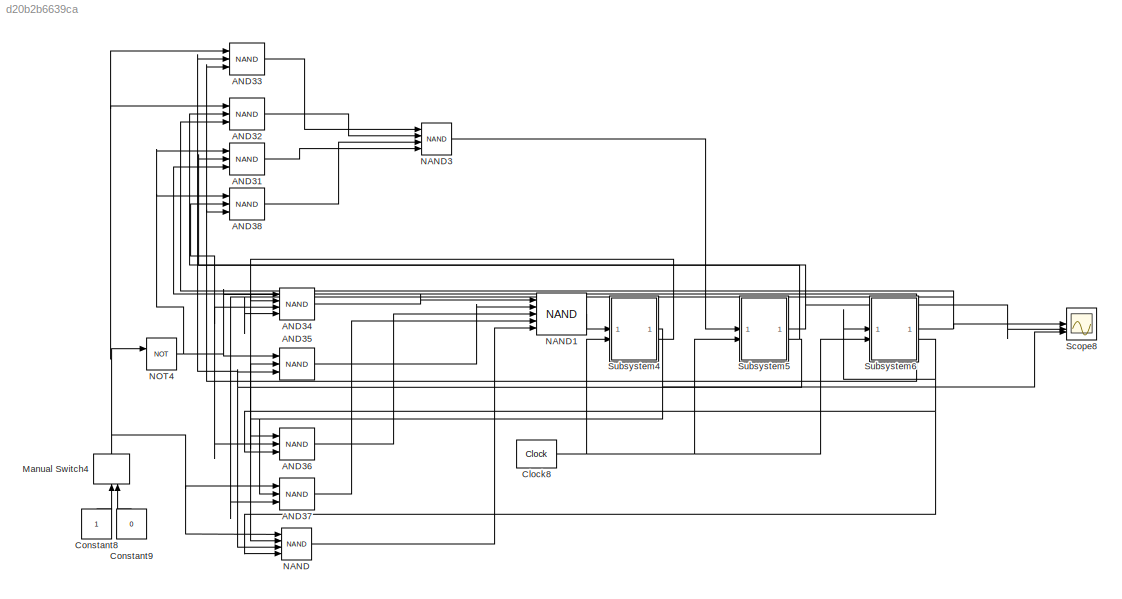
MODEL slx_d20b2b6639ca
KIND model
CONFIG AbsTol = auto
CONFIG EnableMultiTasking = off
CONFIG FixedStep = auto
CONFIG MaxStep = auto
CONFIG MinStep = auto
CONFIG RelTol = 1e-3
CONFIG SampleTimeConstraint = Unconstrained
CONFIG SolverName = VariableStepAuto
CONFIG StartTime = 0.0
CONFIG StopTime = 10.0
BLOCK [Logic] AND31
  AllPortsSameDT = off
  IconShape = distinctive
  Inputs = 3
  Operator = NAND
  OutDataTypeStr = boolean
BLOCK [Logic] AND32
  AllPortsSameDT = off
  IconShape = distinctive
  Inputs = 3
  Operator = NAND
  OutDataTypeStr = boolean
BLOCK [Logic] AND33
  AllPortsSameDT = off
  IconShape = distinctive
  Inputs = 3
  Operator = NAND
  OutDataTypeStr = boolean
BLOCK [Logic] AND34
  AllPortsSameDT = off
  IconShape = distinctive
  Inputs = 4
  Operator = NAND
  OutDataTypeStr = boolean
BLOCK [Logic] AND35
  AllPortsSameDT = off
  IconShape = distinctive
  Inputs = 3
  Operator = NAND
  OutDataTypeStr = boolean
BLOCK [Logic] AND36
  AllPortsSameDT = off
  IconShape = distinctive
  Inputs = 3
  Operator = NAND
  OutDataTypeStr = boolean
BLOCK [Logic] AND37
  AllPortsSameDT = off
  IconShape = distinctive
  Inputs = 3
  Operator = NAND
  OutDataTypeStr = boolean
BLOCK [Logic] AND38
  AllPortsSameDT = off
  IconShape = distinctive
  Inputs = 3
  Operator = NAND
  OutDataTypeStr = boolean
BLOCK [Reference] Clock8  REF=simulink_extras/Flip Flops/Clock
  SourceBlock = simulink_extras/Flip Flops/Clock
  SourceType = Digital clock
BLOCK [Constant] Constant8
  NameLocation = right
  OutDataTypeStr = boolean
BLOCK [Constant] Constant9
  NameLocation = right
  OutDataTypeStr = boolean
  Value = 0
BLOCK [ManualSwitch] Manual Switch4
  NameLocation = right
BLOCK [Logic] NAND
  AllPortsSameDT = off
  IconShape = distinctive
  Inputs = 4
  Operator = NAND
  OutDataTypeStr = boolean
BLOCK [Logic] NAND1
  AllPortsSameDT = off
  IconShape = distinctive
  Inputs = 5
  Operator = NAND
  OutDataTypeStr = boolean
BLOCK [Logic] NAND3
  AllPortsSameDT = off
  IconShape = distinctive
  Inputs = 4
  Operator = NAND
  OutDataTypeStr = boolean
BLOCK [Logic] NOT4
  AllPortsSameDT = off
  IconShape = distinctive
  Operator = NOT
  OutDataTypeStr = boolean
BLOCK [Scope] Scope8
  Floating = off
  NumInputPorts = 3
  ScopeSpecificationString = Simulink.scopes.TimeScopeBlockCfg('CurrentConfiguration', extmgr.ConfigurationSet(extmgr.Configuration('Core','General UI',true),extmgr.Configuration('Core','Source UI',true),extmgr.Configuration('Sources','WiredSimulink',true),extmgr.Configuration('Visuals','Time Domain',true,'SerializedDisplays',{struct('MinYLimReal','-0.125','MaxYLimReal','1.125','YLabelReal','','MinYLimMag','0.00000','MaxYLimM...<+2710ch>
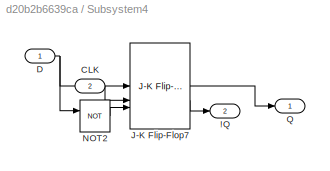
BLOCK [SubSystem] Subsystem4
BLOCK [Outport] Subsystem4/!Q
  Port = 2
BLOCK [Inport] Subsystem4/CLK
  Port = 2
BLOCK [Inport] Subsystem4/D
BLOCK [Reference] Subsystem4/J-K Flip-Flop7  REF=simulink_extras/Flip Flops/J-K
Flip-Flop
  SourceBlock = simulink_extras/Flip Flops/J-K\nFlip-Flop
  SourceType = JKFlipFlop
BLOCK [Logic] Subsystem4/NOT2
  AllPortsSameDT = off
  IconShape = distinctive
  Operator = NOT
  OutDataTypeStr = boolean
BLOCK [Outport] Subsystem4/Q
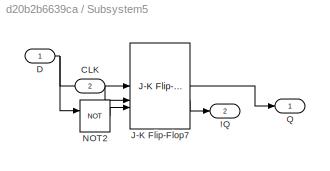
BLOCK [SubSystem] Subsystem5
BLOCK [Outport] Subsystem5/!Q
  Port = 2
BLOCK [Inport] Subsystem5/CLK
  Port = 2
BLOCK [Inport] Subsystem5/D
BLOCK [Reference] Subsystem5/J-K Flip-Flop7  REF=simulink_extras/Flip Flops/J-K
Flip-Flop
  SourceBlock = simulink_extras/Flip Flops/J-K\nFlip-Flop
  SourceType = JKFlipFlop
BLOCK [Logic] Subsystem5/NOT2
  AllPortsSameDT = off
  IconShape = distinctive
  Operator = NOT
  OutDataTypeStr = boolean
BLOCK [Outport] Subsystem5/Q
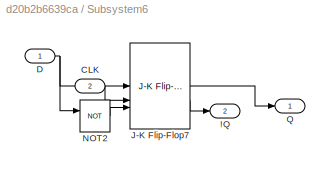
BLOCK [SubSystem] Subsystem6
BLOCK [Outport] Subsystem6/!Q
  Port = 2
BLOCK [Inport] Subsystem6/CLK
  Port = 2
BLOCK [Inport] Subsystem6/D
BLOCK [Reference] Subsystem6/J-K Flip-Flop7  REF=simulink_extras/Flip Flops/J-K
Flip-Flop
  SourceBlock = simulink_extras/Flip Flops/J-K\nFlip-Flop
  SourceType = JKFlipFlop
BLOCK [Logic] Subsystem6/NOT2
  AllPortsSameDT = off
  IconShape = distinctive
  Operator = NOT
  OutDataTypeStr = boolean
BLOCK [Outport] Subsystem6/Q
LINE AND31:1 -> NAND3:4
LINE AND32:1 -> NAND3:2
LINE AND33:1 -> NAND3:1
LINE AND34:1 -> NAND1:1
LINE AND35:1 -> NAND1:2
LINE AND36:1 -> NAND1:3
LINE AND37:1 -> NAND1:4
LINE AND38:1 -> NAND3:3
NET Clock8:1 -> Subsystem4:2, Subsystem5:2, Subsystem6:2
LINE Constant8:1 -> Manual Switch4:1
LINE Constant9:1 -> Manual Switch4:2
NET Manual Switch4:1 -> AND32:1, AND33:1, AND37:1, NAND:1, NOT4:1
LINE NAND1:1 -> Subsystem4:1
LINE NAND3:1 -> Subsystem5:1
LINE NAND:1 -> NAND1:5
NET NOT4:1 -> AND31:1, AND34:1, AND35:1, AND38:1
LINE Subsystem4/CLK:1 -> Subsystem4/J-K Flip-Flop7:2
NET Subsystem4/D:1 -> Subsystem4/J-K Flip-Flop7:1, Subsystem4/NOT2:1
LINE Subsystem4/J-K Flip-Flop7:1 -> Subsystem4/Q:1
LINE Subsystem4/J-K Flip-Flop7:2 -> Subsystem4/!Q:1
LINE Subsystem4/NOT2:1 -> Subsystem4/J-K Flip-Flop7:3
NET Subsystem4:1 -> AND35:2, AND36:1, AND37:2, Scope8:3
NET Subsystem4:2 -> AND34:2, NAND:2
LINE Subsystem5/CLK:1 -> Subsystem5/J-K Flip-Flop7:2
NET Subsystem5/D:1 -> Subsystem5/J-K Flip-Flop7:1, Subsystem5/NOT2:1
LINE Subsystem5/J-K Flip-Flop7:1 -> Subsystem5/Q:1
LINE Subsystem5/J-K Flip-Flop7:2 -> Subsystem5/!Q:1
LINE Subsystem5/NOT2:1 -> Subsystem5/J-K Flip-Flop7:3
NET Subsystem5:1 -> AND32:2, AND34:3, AND36:2, AND38:2, Scope8:2
NET Subsystem5:2 -> AND31:2, AND33:2, AND35:3, NAND:3
LINE Subsystem6/CLK:1 -> Subsystem6/J-K Flip-Flop7:2
NET Subsystem6/D:1 -> Subsystem6/J-K Flip-Flop7:1, Subsystem6/NOT2:1
LINE Subsystem6/J-K Flip-Flop7:1 -> Subsystem6/Q:1
LINE Subsystem6/J-K Flip-Flop7:2 -> Subsystem6/!Q:1
LINE Subsystem6/NOT2:1 -> Subsystem6/J-K Flip-Flop7:3
NET Subsystem6:1 -> AND31:3, AND32:3, AND34:4, AND37:3, Scope8:1
NET Subsystem6:2 -> AND33:3, AND36:3, AND38:3, NAND:4, Subsystem6:1
note: NET lines group one-source signal fan-out (src -> all destinations, sorted); 1:1 wires keep LINE
